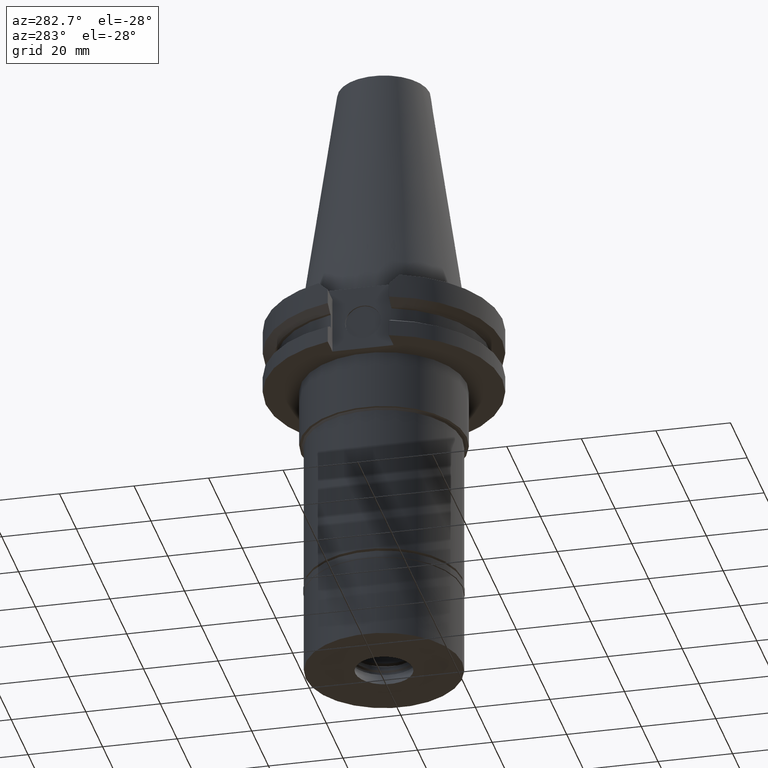
[diagram: clean part render]
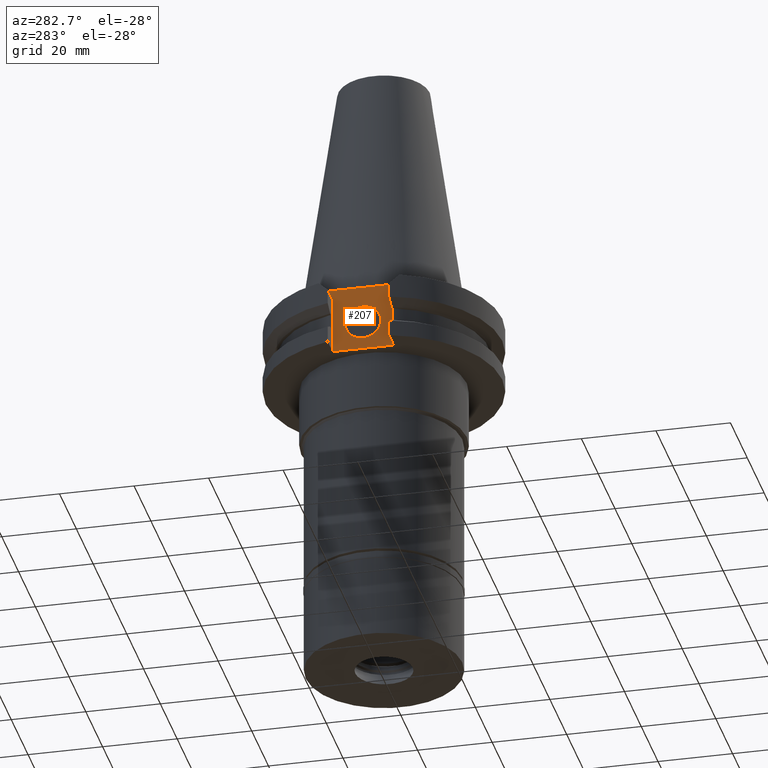
[diagram: same view with one face highlighted and labeled with its STEP entity id]
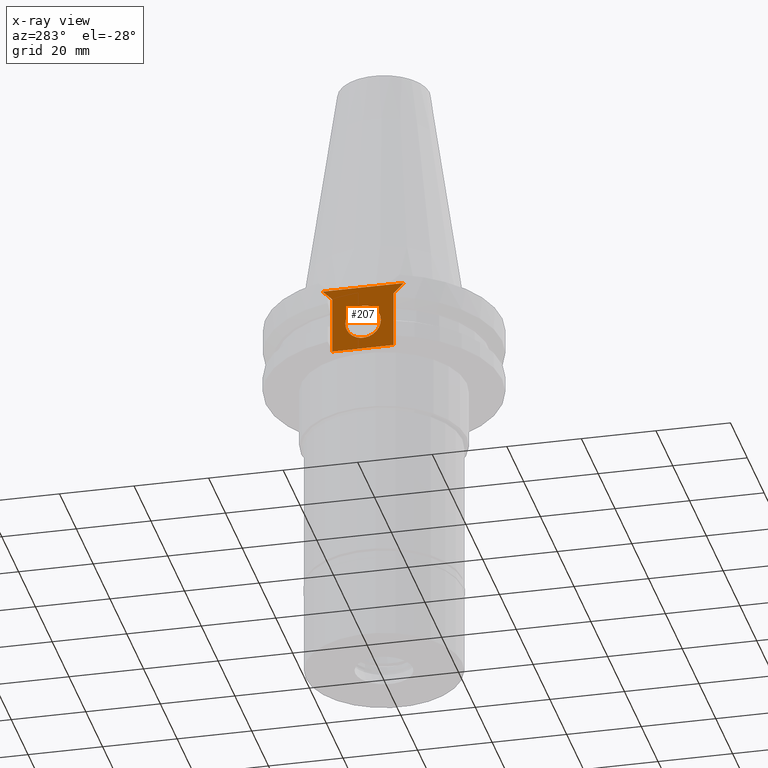
[diagram: x-ray of the same camera — body ghosted, the highlighted face saturated]
A machine part, auxiliary view. The second image highlights one B-rep face of the part: STEP entity #207.
The next image is the same camera in x-ray: the body ghosted, the highlighted face saturated — about 0% of this face is hidden behind the body in this view.
In plain terms, the highlighted planar face has unit normal (1, 0, 0).
Its self-contained STEP definition (entity closure, byte-faithful):
#7 = VERTEX_POINT ( 'NONE', #1004 ) ;
#37 = CARTESIAN_POINT ( 'NONE',  ( -24.98000000000000043, -10.89000000000000057, -1.000000000000000000 ) ) ;
#126 = EDGE_CURVE ( 'NONE', #1891, #7, #853, .T. ) ;
#196 = CARTESIAN_POINT ( 'NONE',  ( -24.98000000000000043, 0.0000000000000000000, 0.0000000000000000000 ) ) ;
#207 = ADVANCED_FACE ( 'NONE', ( #2685, #234 ), #956, .F. ) ;
#234 = FACE_BOUND ( 'NONE', #1298, .T. ) ;
#236 = VERTEX_POINT ( 'NONE', #719 ) ;
#382 = LINE ( 'NONE', #803, #2564 ) ;
#460 = VERTEX_POINT ( 'NONE', #2613 ) ;
#526 = VERTEX_POINT ( 'NONE', #37 ) ;
#642 = ORIENTED_EDGE ( 'NONE', *, *, #3280, .F. ) ;
#685 = CARTESIAN_POINT ( 'NONE',  ( -24.98000000000000043, 8.189999999999999503, -3.700000000000000178 ) ) ;
#702 = DIRECTION ( 'NONE',  ( 0.0000000000000000000, 1.000000000000000000, 0.0000000000000000000 ) ) ;
#719 = CARTESIAN_POINT ( 'NONE',  ( -24.98000000000000043, -4.762500000000000178, -11.18000000000000149 ) ) ;
#726 = EDGE_CURVE ( 'NONE', #2750, #1891, #788, .T. ) ;
#788 = LINE ( 'NONE', #1791, #3192 ) ;
#803 = CARTESIAN_POINT ( 'NONE',  ( -24.98000000000000043, 10.89000000000000057, -1.000000000000000000 ) ) ;
#853 = LINE ( 'NONE', #2403, #3241 ) ;
#870 = LINE ( 'NONE', #1423, #2701 ) ;
#939 = VERTEX_POINT ( 'NONE', #2872 ) ;
#956 = PLANE ( 'NONE',  #1101 ) ;
#1004 = CARTESIAN_POINT ( 'NONE',  ( -24.98000000000000043, -8.189999999999999503, -3.700000000000000178 ) ) ;
#1047 = CARTESIAN_POINT ( 'NONE',  ( -24.98000000000000043, 8.189999999999999503, -3.700000000000000178 ) ) ;
#1060 = DIRECTION ( 'NONE',  ( 0.0000000000000000000, -1.000000000000000000, 0.0000000000000000000 ) ) ;
#1090 = VECTOR ( 'NONE', #1777, 1000.000000000000000 ) ;
#1101 = AXIS2_PLACEMENT_3D ( 'NONE', #196, #1981, #702 ) ;
#1203 = ORIENTED_EDGE ( 'NONE', *, *, #726, .T. ) ;
#1298 = EDGE_LOOP ( 'NONE', ( #2133, #642 ) ) ;
#1400 = DIRECTION ( 'NONE',  ( 0.0000000000000000000, 0.0000000000000000000, 1.000000000000000000 ) ) ;
#1419 = ORIENTED_EDGE ( 'NONE', *, *, #2541, .F. ) ;
#1423 = CARTESIAN_POINT ( 'NONE',  ( -24.98000000000000043, -10.89000000000000057, -1.000000000000000000 ) ) ;
#1505 = LINE ( 'NONE', #685, #1090 ) ;
#1518 = CARTESIAN_POINT ( 'NONE',  ( -24.98000000000000043, 8.189999999999999503, -19.05000000000000071 ) ) ;
#1526 = EDGE_LOOP ( 'NONE', ( #1792, #1419, #2876, #3112, #3135, #1203 ) ) ;
#1559 = AXIS2_PLACEMENT_3D ( 'NONE', #1709, #2684, #2177 ) ;
#1654 = EDGE_CURVE ( 'NONE', #460, #526, #382, .T. ) ;
#1656 = DIRECTION ( 'NONE',  ( 0.0000000000000000000, 0.7071067811865474617, -0.7071067811865474617 ) ) ;
#1709 = CARTESIAN_POINT ( 'NONE',  ( -24.98000000000000043, 0.0000000000000000000, -11.18000000000000149 ) ) ;
#1777 = DIRECTION ( 'NONE',  ( 0.0000000000000000000, 0.0000000000000000000, -1.000000000000000000 ) ) ;
#1791 = CARTESIAN_POINT ( 'NONE',  ( -24.98000000000000043, 8.189999999999999503, -19.05000000000000071 ) ) ;
#1792 = ORIENTED_EDGE ( 'NONE', *, *, #126, .T. ) ;
#1834 = EDGE_CURVE ( 'NONE', #236, #939, #2992, .T. ) ;
#1891 = VERTEX_POINT ( 'NONE', #2510 ) ;
#1981 = DIRECTION ( 'NONE',  ( 1.000000000000000000, 0.0000000000000000000, 0.0000000000000000000 ) ) ;
#2057 = AXIS2_PLACEMENT_3D ( 'NONE', #2446, #2966, #3247 ) ;
#2133 = ORIENTED_EDGE ( 'NONE', *, *, #1834, .F. ) ;
#2148 = DIRECTION ( 'NONE',  ( 0.0000000000000000000, -1.000000000000000000, 0.0000000000000000000 ) ) ;
#2149 = VERTEX_POINT ( 'NONE', #1047 ) ;
#2177 = DIRECTION ( 'NONE',  ( 0.0000000000000000000, -1.000000000000000000, 0.0000000000000000000 ) ) ;
#2184 = DIRECTION ( 'NONE',  ( 0.0000000000000000000, 0.7071067811865474617, 0.7071067811865474617 ) ) ;
#2199 = CARTESIAN_POINT ( 'NONE',  ( -24.98000000000000043, 8.189999999999999503, -3.700000000000000178 ) ) ;
#2209 = VECTOR ( 'NONE', #2184, 1000.000000000000114 ) ;
#2300 = EDGE_CURVE ( 'NONE', #2149, #2750, #1505, .T. ) ;
#2403 = CARTESIAN_POINT ( 'NONE',  ( -24.98000000000000043, -8.189999999999999503, -19.05000000000000071 ) ) ;
#2446 = CARTESIAN_POINT ( 'NONE',  ( -24.98000000000000043, 0.0000000000000000000, -11.18000000000000149 ) ) ;
#2484 = CIRCLE ( 'NONE', #2057, 4.762500000000000178 ) ;
#2510 = CARTESIAN_POINT ( 'NONE',  ( -24.98000000000000043, -8.189999999999999503, -19.05000000000000071 ) ) ;
#2541 = EDGE_CURVE ( 'NONE', #526, #7, #870, .T. ) ;
#2564 = VECTOR ( 'NONE', #2148, 1000.000000000000000 ) ;
#2613 = CARTESIAN_POINT ( 'NONE',  ( -24.98000000000000043, 10.89000000000000057, -1.000000000000000000 ) ) ;
#2684 = DIRECTION ( 'NONE',  ( -1.000000000000000000, 0.0000000000000000000, 0.0000000000000000000 ) ) ;
#2685 = FACE_OUTER_BOUND ( 'NONE', #1526, .T. ) ;
#2701 = VECTOR ( 'NONE', #1656, 1000.000000000000114 ) ;
#2729 = LINE ( 'NONE', #2199, #2209 ) ;
#2750 = VERTEX_POINT ( 'NONE', #1518 ) ;
#2872 = CARTESIAN_POINT ( 'NONE',  ( -24.98000000000000043, 4.762500000000000178, -11.18000000000000149 ) ) ;
#2876 = ORIENTED_EDGE ( 'NONE', *, *, #1654, .F. ) ;
#2966 = DIRECTION ( 'NONE',  ( -1.000000000000000000, 0.0000000000000000000, 0.0000000000000000000 ) ) ;
#2992 = CIRCLE ( 'NONE', #1559, 4.762500000000000178 ) ;
#3112 = ORIENTED_EDGE ( 'NONE', *, *, #3250, .F. ) ;
#3135 = ORIENTED_EDGE ( 'NONE', *, *, #2300, .T. ) ;
#3192 = VECTOR ( 'NONE', #1060, 1000.000000000000000 ) ;
#3241 = VECTOR ( 'NONE', #1400, 1000.000000000000000 ) ;
#3247 = DIRECTION ( 'NONE',  ( 0.0000000000000000000, 1.000000000000000000, 0.0000000000000000000 ) ) ;
#3250 = EDGE_CURVE ( 'NONE', #2149, #460, #2729, .T. ) ;
#3280 = EDGE_CURVE ( 'NONE', #939, #236, #2484, .T. ) ;